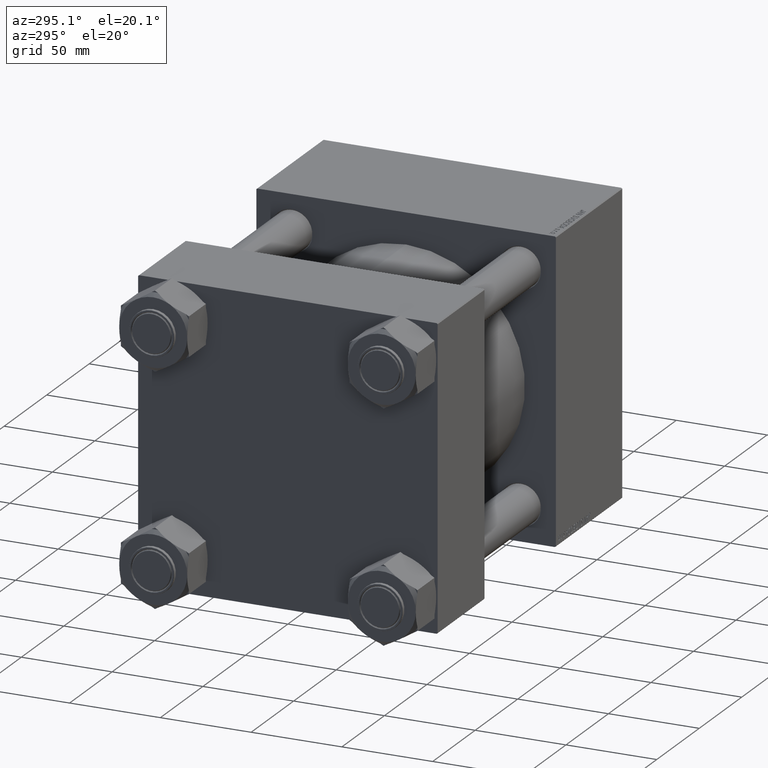
[diagram: clean part render]
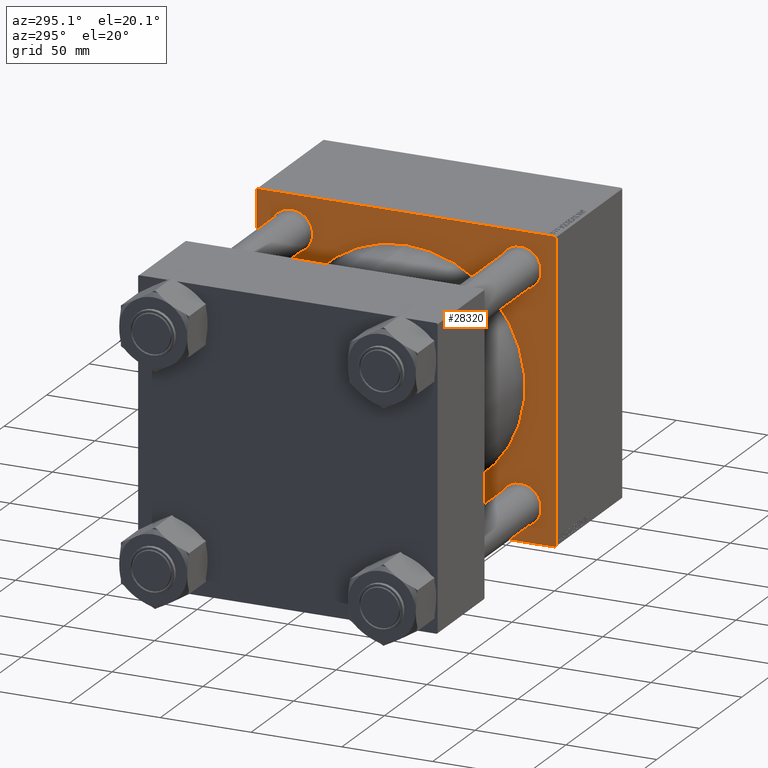
[diagram: same view with one face highlighted and labeled with its STEP entity id]
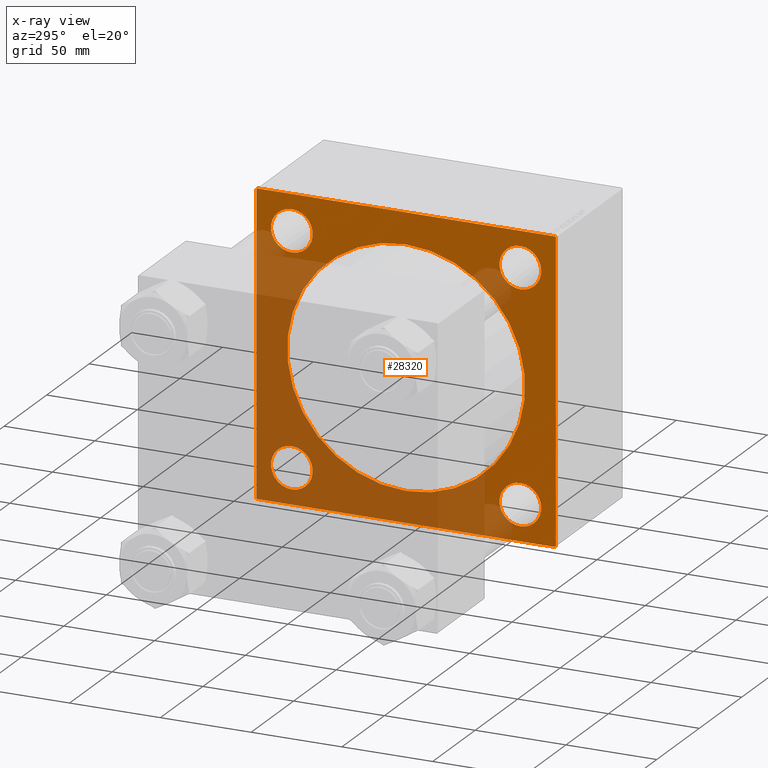
[diagram: x-ray of the same camera — body ghosted, the highlighted face saturated]
A machine part, auxiliary view. The second image highlights one B-rep face of the part: STEP entity #28320.
The next image is the same camera in x-ray: the body ghosted, the highlighted face saturated — about 47% of this face is hidden behind the body in this view.
In plain terms, the highlighted planar face has unit normal (-1, 0, 0).
Its self-contained STEP definition (entity closure, byte-faithful):
#385 = EDGE_CURVE ( 'NONE', #33760, #39097, #8521, .T. ) ;
#443 = DIRECTION ( 'NONE',  ( 0.000000000000000000, 0.000000000000000000, 1.000000000000000000 ) ) ;
#1177 = EDGE_LOOP ( 'NONE', ( #26169, #24135 ) ) ;
#1536 = FACE_OUTER_BOUND ( 'NONE', #20783, .T. ) ;
#3794 = ORIENTED_EDGE ( 'NONE', *, *, #7898, .T. ) ;
#3869 = EDGE_CURVE ( 'NONE', #39097, #33760, #8630, .T. ) ;
#3884 = AXIS2_PLACEMENT_3D ( 'NONE', #45985, #34669, #10719 ) ;
#4541 = CARTESIAN_POINT ( 'NONE',  ( 139.0000000000000000, 62.95000000000000284, -62.95000000000000284 ) ) ;
#5548 = AXIS2_PLACEMENT_3D ( 'NONE', #17943, #37255, #48845 ) ;
#6087 = ORIENTED_EDGE ( 'NONE', *, *, #385, .T. ) ;
#6970 = AXIS2_PLACEMENT_3D ( 'NONE', #43519, #31169, #8239 ) ;
#7189 = CARTESIAN_POINT ( 'NONE',  ( 139.0000000000000000, 62.95000000000000284, -51.45000000000000995 ) ) ;
#7442 = DIRECTION ( 'NONE',  ( 1.000000000000000000, 0.000000000000000000, -0.000000000000000000 ) ) ;
#7743 = CARTESIAN_POINT ( 'NONE',  ( 139.0000000000000000, -2.602085213965210642E-15, 0.000000000000000000 ) ) ;
#7898 = EDGE_CURVE ( 'NONE', #41190, #8725, #35903, .T. ) ;
#8180 = CIRCLE ( 'NONE', #11501, 11.49999999999999645 ) ;
#8239 = DIRECTION ( 'NONE',  ( 0.000000000000000000, 0.000000000000000000, 1.000000000000000000 ) ) ;
#8404 = DIRECTION ( 'NONE',  ( 1.000000000000000000, 0.000000000000000000, -0.000000000000000000 ) ) ;
#8521 = CIRCLE ( 'NONE', #29911, 11.49999999999999645 ) ;
#8630 = CIRCLE ( 'NONE', #19338, 11.49999999999999645 ) ;
#8725 = VERTEX_POINT ( 'NONE', #45532 ) ;
#8810 = EDGE_CURVE ( 'NONE', #18379, #45233, #11279, .T. ) ;
#9027 = DIRECTION ( 'NONE',  ( 0.000000000000000000, 0.7071067811865474617, -0.7071067811865474617 ) ) ;
#9457 = LINE ( 'NONE', #28774, #49167 ) ;
#10325 = DIRECTION ( 'NONE',  ( 0.000000000000000000, -1.682156097916903834E-16, -1.000000000000000000 ) ) ;
#10485 = EDGE_CURVE ( 'NONE', #42788, #17835, #37932, .T. ) ;
#10719 = DIRECTION ( 'NONE',  ( 0.000000000000000000, 0.000000000000000000, 1.000000000000000000 ) ) ;
#11279 = CIRCLE ( 'NONE', #5548, 11.50000000000001066 ) ;
#11377 = EDGE_CURVE ( 'NONE', #14346, #17835, #26082, .T. ) ;
#11501 = AXIS2_PLACEMENT_3D ( 'NONE', #4541, #8404, #443 ) ;
#11669 = CARTESIAN_POINT ( 'NONE',  ( 139.0000000000000000, -62.94999999999998153, 51.45000000000000995 ) ) ;
#11864 = DIRECTION ( 'NONE',  ( 0.000000000000000000, 0.000000000000000000, -1.000000000000000000 ) ) ;
#11923 = CARTESIAN_POINT ( 'NONE',  ( 139.0000000000000000, 82.50000000000001421, 82.00000000000002842 ) ) ;
#12369 = FACE_BOUND ( 'NONE', #1177, .T. ) ;
#12768 = LINE ( 'NONE', #28459, #23832 ) ;
#13048 = DIRECTION ( 'NONE',  ( 1.000000000000000000, 0.000000000000000000, -0.000000000000000000 ) ) ;
#13430 = DIRECTION ( 'NONE',  ( 0.000000000000000000, 0.000000000000000000, 1.000000000000000000 ) ) ;
#13553 = DIRECTION ( 'NONE',  ( 0.000000000000000000, 0.000000000000000000, 1.000000000000000000 ) ) ;
#13881 = CARTESIAN_POINT ( 'NONE',  ( 139.0000000000000000, -81.99999999999990052, 82.49999999999997158 ) ) ;
#14186 = EDGE_CURVE ( 'NONE', #42788, #30950, #29892, .T. ) ;
#14346 = VERTEX_POINT ( 'NONE', #36812 ) ;
#14518 = DIRECTION ( 'NONE',  ( 0.000000000000000000, -1.000000000000000000, -1.682156097916904081E-16 ) ) ;
#14552 = EDGE_CURVE ( 'NONE', #22156, #21115, #9457, .T. ) ;
#15362 = CARTESIAN_POINT ( 'NONE',  ( 139.0000000000000000, -82.25000000000116529, -82.24999999999889155 ) ) ;
#15655 = CARTESIAN_POINT ( 'NONE',  ( 139.0000000000000000, 62.95000000000000284, 51.45000000000000995 ) ) ;
#17835 = VERTEX_POINT ( 'NONE', #13881 ) ;
#17943 = CARTESIAN_POINT ( 'NONE',  ( 139.0000000000000000, -62.94999999999998153, 62.95000000000001705 ) ) ;
#18359 = CARTESIAN_POINT ( 'NONE',  ( 139.0000000000000000, -82.24999999999880629, 82.25000000000108002 ) ) ;
#18379 = VERTEX_POINT ( 'NONE', #43873 ) ;
#18384 = CARTESIAN_POINT ( 'NONE',  ( 139.0000000000000000, 62.95000000000000284, -74.45000000000000284 ) ) ;
#18497 = ORIENTED_EDGE ( 'NONE', *, *, #10485, .T. ) ;
#19095 = DIRECTION ( 'NONE',  ( 1.000000000000000000, 0.000000000000000000, 0.000000000000000000 ) ) ;
#19222 = LINE ( 'NONE', #15362, #32890 ) ;
#19338 = AXIS2_PLACEMENT_3D ( 'NONE', #42712, #7442, #38856 ) ;
#19410 = CIRCLE ( 'NONE', #6970, 11.49999999999999645 ) ;
#19446 = EDGE_CURVE ( 'NONE', #21115, #30950, #19222, .T. ) ;
#19454 = CARTESIAN_POINT ( 'NONE',  ( 139.0000000000000000, -82.49999999999997158, 81.99999999999991473 ) ) ;
#19513 = EDGE_CURVE ( 'NONE', #38524, #22156, #12768, .T. ) ;
#19583 = VERTEX_POINT ( 'NONE', #18384 ) ;
#19668 = ORIENTED_EDGE ( 'NONE', *, *, #19513, .T. ) ;
#19728 = VERTEX_POINT ( 'NONE', #11923 ) ;
#20086 = FACE_BOUND ( 'NONE', #50678, .T. ) ;
#20620 = CARTESIAN_POINT ( 'NONE',  ( 139.0000000000000000, 82.50000000000001421, 82.50000000000000000 ) ) ;
#20783 = EDGE_LOOP ( 'NONE', ( #44153, #49143, #38225, #18497, #47074, #50808, #46061, #19668 ) ) ;
#21115 = VERTEX_POINT ( 'NONE', #28797 ) ;
#21657 = DIRECTION ( 'NONE',  ( 1.000000000000000000, 0.000000000000000000, -0.000000000000000000 ) ) ;
#21748 = CARTESIAN_POINT ( 'NONE',  ( 139.0000000000000000, -82.50000000000000000, -82.00000000000005684 ) ) ;
#22156 = VERTEX_POINT ( 'NONE', #32629 ) ;
#22416 = AXIS2_PLACEMENT_3D ( 'NONE', #47365, #28563, #40163 ) ;
#22456 = VECTOR ( 'NONE', #9027, 1000.000000000000114 ) ;
#22604 = ORIENTED_EDGE ( 'NONE', *, *, #45537, .T. ) ;
#23553 = EDGE_LOOP ( 'NONE', ( #40936, #6087 ) ) ;
#23832 = VECTOR ( 'NONE', #36699, 1000.000000000000114 ) ;
#23856 = EDGE_CURVE ( 'NONE', #14346, #19728, #24724, .T. ) ;
#24093 = VERTEX_POINT ( 'NONE', #7189 ) ;
#24135 = ORIENTED_EDGE ( 'NONE', *, *, #49268, .T. ) ;
#24724 = LINE ( 'NONE', #28590, #22456 ) ;
#24960 = FACE_BOUND ( 'NONE', #49335, .T. ) ;
#25340 = DIRECTION ( 'NONE',  ( 1.000000000000000000, 0.000000000000000000, -0.000000000000000000 ) ) ;
#26082 = LINE ( 'NONE', #45647, #50001 ) ;
#26169 = ORIENTED_EDGE ( 'NONE', *, *, #39995, .T. ) ;
#27666 = VERTEX_POINT ( 'NONE', #15655 ) ;
#28253 = DIRECTION ( 'NONE',  ( 0.000000000000000000, -1.000000000000000000, 0.000000000000000000 ) ) ;
#28320 = ADVANCED_FACE ( 'NONE', ( #24960, #39903, #12369, #36047, #20086, #1536 ), #31660, .T. ) ;
#28427 = AXIS2_PLACEMENT_3D ( 'NONE', #37355, #21657, #13430 ) ;
#28459 = CARTESIAN_POINT ( 'NONE',  ( 139.0000000000000000, 82.25000000000002842, -82.25000000000002842 ) ) ;
#28527 = CARTESIAN_POINT ( 'NONE',  ( 139.0000000000000000, -62.94999999999998153, -74.45000000000001705 ) ) ;
#28563 = DIRECTION ( 'NONE',  ( -1.000000000000000000, -0.000000000000000000, 0.000000000000000000 ) ) ;
#28590 = CARTESIAN_POINT ( 'NONE',  ( 139.0000000000000000, 82.25000000000001421, 82.25000000000001421 ) ) ;
#28774 = CARTESIAN_POINT ( 'NONE',  ( 139.0000000000000000, 82.50000000000001421, -82.50000000000002842 ) ) ;
#28797 = CARTESIAN_POINT ( 'NONE',  ( 139.0000000000000000, -82.00000000000004263, -82.50000000000002842 ) ) ;
#29892 = LINE ( 'NONE', #45589, #45878 ) ;
#29911 = AXIS2_PLACEMENT_3D ( 'NONE', #36720, #13048, #13553 ) ;
#30950 = VERTEX_POINT ( 'NONE', #21748 ) ;
#31054 = DIRECTION ( 'NONE',  ( 0.000000000000000000, -0.7071067811865376918, 0.7071067811865574537 ) ) ;
#31169 = DIRECTION ( 'NONE',  ( 1.000000000000000000, 0.000000000000000000, -0.000000000000000000 ) ) ;
#31660 = PLANE ( 'NONE',  #22416 ) ;
#32047 = DIRECTION ( 'NONE',  ( 0.000000000000000000, 0.000000000000000000, 1.000000000000000000 ) ) ;
#32069 = EDGE_LOOP ( 'NONE', ( #47460, #43337 ) ) ;
#32452 = ORIENTED_EDGE ( 'NONE', *, *, #43686, .T. ) ;
#32629 = CARTESIAN_POINT ( 'NONE',  ( 139.0000000000000000, 82.00000000000004263, -82.50000000000002842 ) ) ;
#32890 = VECTOR ( 'NONE', #31054, 999.9999999999998863 ) ;
#33760 = VERTEX_POINT ( 'NONE', #28527 ) ;
#34669 = DIRECTION ( 'NONE',  ( 1.000000000000000000, 0.000000000000000000, -0.000000000000000000 ) ) ;
#35094 = AXIS2_PLACEMENT_3D ( 'NONE', #42165, #50145, #42927 ) ;
#35209 = CIRCLE ( 'NONE', #39321, 65.50000000000001421 ) ;
#35805 = LINE ( 'NONE', #20620, #45082 ) ;
#35903 = CIRCLE ( 'NONE', #35094, 65.50000000000001421 ) ;
#36047 = FACE_BOUND ( 'NONE', #23553, .T. ) ;
#36663 = EDGE_CURVE ( 'NONE', #41930, #27666, #19410, .T. ) ;
#36699 = DIRECTION ( 'NONE',  ( -0.000000000000000000, -0.7071067811865474617, -0.7071067811865474617 ) ) ;
#36720 = CARTESIAN_POINT ( 'NONE',  ( 139.0000000000000000, -62.94999999999998153, -62.95000000000001705 ) ) ;
#36812 = CARTESIAN_POINT ( 'NONE',  ( 139.0000000000000000, 82.00000000000004263, 82.50000000000000000 ) ) ;
#36937 = CARTESIAN_POINT ( 'NONE',  ( 139.0000000000000000, 62.95000000000000284, 62.95000000000000284 ) ) ;
#37255 = DIRECTION ( 'NONE',  ( 1.000000000000000000, 0.000000000000000000, -0.000000000000000000 ) ) ;
#37355 = CARTESIAN_POINT ( 'NONE',  ( 139.0000000000000000, 62.95000000000000284, -62.95000000000000284 ) ) ;
#37426 = DIRECTION ( 'NONE',  ( -0.000000000000000000, 0.7071067811865573427, 0.7071067811865376918 ) ) ;
#37932 = LINE ( 'NONE', #18359, #47506 ) ;
#38225 = ORIENTED_EDGE ( 'NONE', *, *, #14186, .F. ) ;
#38524 = VERTEX_POINT ( 'NONE', #42524 ) ;
#38856 = DIRECTION ( 'NONE',  ( 0.000000000000000000, 0.000000000000000000, 1.000000000000000000 ) ) ;
#39097 = VERTEX_POINT ( 'NONE', #50702 ) ;
#39321 = AXIS2_PLACEMENT_3D ( 'NONE', #7743, #19095, #11864 ) ;
#39903 = FACE_BOUND ( 'NONE', #32069, .T. ) ;
#39995 = EDGE_CURVE ( 'NONE', #24093, #19583, #50637, .T. ) ;
#40163 = DIRECTION ( 'NONE',  ( 0.000000000000000000, 0.000000000000000000, 1.000000000000000000 ) ) ;
#40178 = ORIENTED_EDGE ( 'NONE', *, *, #8810, .T. ) ;
#40936 = ORIENTED_EDGE ( 'NONE', *, *, #3869, .T. ) ;
#41190 = VERTEX_POINT ( 'NONE', #46082 ) ;
#41712 = AXIS2_PLACEMENT_3D ( 'NONE', #36937, #25340, #32047 ) ;
#41930 = VERTEX_POINT ( 'NONE', #43366 ) ;
#42165 = CARTESIAN_POINT ( 'NONE',  ( 139.0000000000000000, -2.602085213965210642E-15, 0.000000000000000000 ) ) ;
#42524 = CARTESIAN_POINT ( 'NONE',  ( 139.0000000000000000, 82.50000000000001421, -82.00000000000005684 ) ) ;
#42712 = CARTESIAN_POINT ( 'NONE',  ( 139.0000000000000000, -62.94999999999998153, -62.95000000000001705 ) ) ;
#42788 = VERTEX_POINT ( 'NONE', #19454 ) ;
#42927 = DIRECTION ( 'NONE',  ( 0.000000000000000000, 0.000000000000000000, -1.000000000000000000 ) ) ;
#43337 = ORIENTED_EDGE ( 'NONE', *, *, #44031, .T. ) ;
#43366 = CARTESIAN_POINT ( 'NONE',  ( 139.0000000000000000, 62.95000000000000284, 74.45000000000000284 ) ) ;
#43519 = CARTESIAN_POINT ( 'NONE',  ( 139.0000000000000000, 62.95000000000000284, 62.95000000000000284 ) ) ;
#43686 = EDGE_CURVE ( 'NONE', #45233, #18379, #46657, .T. ) ;
#43873 = CARTESIAN_POINT ( 'NONE',  ( 139.0000000000000000, -62.94999999999998153, 74.45000000000003126 ) ) ;
#44031 = EDGE_CURVE ( 'NONE', #27666, #41930, #49135, .T. ) ;
#44153 = ORIENTED_EDGE ( 'NONE', *, *, #14552, .T. ) ;
#45082 = VECTOR ( 'NONE', #47641, 1000.000000000000000 ) ;
#45233 = VERTEX_POINT ( 'NONE', #11669 ) ;
#45532 = CARTESIAN_POINT ( 'NONE',  ( 139.0000000000000000, 5.419351320449953395E-15, -65.50000000000001421 ) ) ;
#45537 = EDGE_CURVE ( 'NONE', #8725, #41190, #35209, .T. ) ;
#45589 = CARTESIAN_POINT ( 'NONE',  ( 139.0000000000000000, -82.49999999999997158, 82.49999999999997158 ) ) ;
#45646 = EDGE_CURVE ( 'NONE', #19728, #38524, #35805, .T. ) ;
#45647 = CARTESIAN_POINT ( 'NONE',  ( 139.0000000000000000, 82.50000000000001421, 82.50000000000000000 ) ) ;
#45878 = VECTOR ( 'NONE', #10325, 1000.000000000000000 ) ;
#45985 = CARTESIAN_POINT ( 'NONE',  ( 139.0000000000000000, -62.94999999999998153, 62.95000000000001705 ) ) ;
#46061 = ORIENTED_EDGE ( 'NONE', *, *, #45646, .T. ) ;
#46082 = CARTESIAN_POINT ( 'NONE',  ( 139.0000000000000000, -2.602085213965210642E-15, 65.50000000000001421 ) ) ;
#46657 = CIRCLE ( 'NONE', #3884, 11.50000000000001066 ) ;
#47074 = ORIENTED_EDGE ( 'NONE', *, *, #11377, .F. ) ;
#47365 = CARTESIAN_POINT ( 'NONE',  ( 139.0000000000000000, 0.000000000000000000, 0.000000000000000000 ) ) ;
#47460 = ORIENTED_EDGE ( 'NONE', *, *, #36663, .T. ) ;
#47506 = VECTOR ( 'NONE', #37426, 1000.000000000000114 ) ;
#47641 = DIRECTION ( 'NONE',  ( 0.000000000000000000, 0.000000000000000000, -1.000000000000000000 ) ) ;
#48845 = DIRECTION ( 'NONE',  ( 0.000000000000000000, 0.000000000000000000, 1.000000000000000000 ) ) ;
#49135 = CIRCLE ( 'NONE', #41712, 11.49999999999999645 ) ;
#49143 = ORIENTED_EDGE ( 'NONE', *, *, #19446, .T. ) ;
#49167 = VECTOR ( 'NONE', #28253, 1000.000000000000000 ) ;
#49268 = EDGE_CURVE ( 'NONE', #19583, #24093, #8180, .T. ) ;
#49335 = EDGE_LOOP ( 'NONE', ( #40178, #32452 ) ) ;
#50001 = VECTOR ( 'NONE', #14518, 1000.000000000000000 ) ;
#50145 = DIRECTION ( 'NONE',  ( 1.000000000000000000, 0.000000000000000000, 0.000000000000000000 ) ) ;
#50637 = CIRCLE ( 'NONE', #28427, 11.49999999999999645 ) ;
#50678 = EDGE_LOOP ( 'NONE', ( #3794, #22604 ) ) ;
#50702 = CARTESIAN_POINT ( 'NONE',  ( 139.0000000000000000, -62.94999999999998153, -51.45000000000002416 ) ) ;
#50808 = ORIENTED_EDGE ( 'NONE', *, *, #23856, .T. ) ;